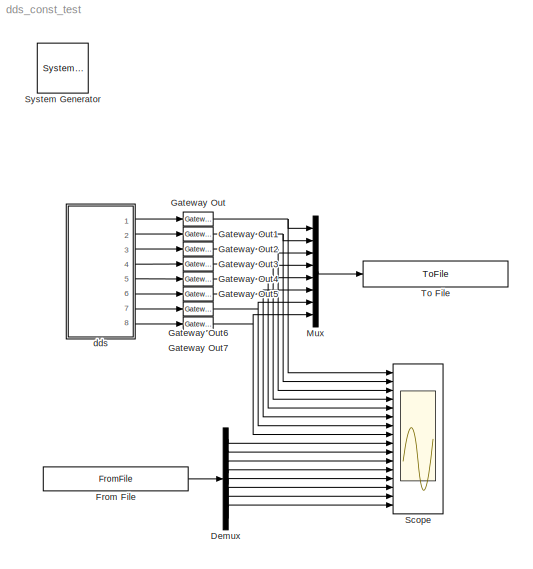
MODEL dds_const_test
KIND model
BLOCK [Reference]  System Generator  REF=xbsIndex_r4/ System Generator
  AttributesFormatString = System\\nGenerator
  FunctionWithSeparateData = off
  Ports = []
  RTWMemSecDataConstants = Inherit from model
  RTWMemSecDataInternal = Inherit from model
  RTWMemSecDataParameters = Inherit from model
  RTWMemSecFuncExecute = Inherit from model
  RTWMemSecFuncInitTerm = Inherit from model
  ShowPortLabels = FromPortIcon
  SourceBlock = xbsIndex_r4/ System Generator
  SourceType = Xilinx System Generator Block
  SystemSampleTime = -1
  Tag = genX
  UserData = DataTag0
  UserDataPersistent = on
  block_type = sysgen
  block_version = 10.1.1
  clock_wrapper = Clock Enables
  core_generation = According to Block Masks
  dbl_ovrd = According to Block Masks
  dcm_input_clock_period = 100
  deprecated_control = off
  directory = ./netlist
  eval_field = 0
  has_advanced_control = 0
  incr_netlist = off
  infoedit = System Generator
  package = ff668
  part = xc4vsx35
  run_coregen = off
  sg_icon_stat = 51,50,-1,-1,red,beige,0,07734,right
  sg_mask_display = fprintf('','COMMENT: begin icon graphics');\npatch([0 51 51 0 ],[0 0 50 50 ],[0.93 0.92 0.86]);\npatch([12 4 16 4 12 25 29 33 47 36 25 17 29 17 25 36 47 33 29 25 12 ],[5 13 25 37 45 45 41 45 45 34 45 37 25 13 5 16 5 5 9 5 5 ],[0.6 0.2 0.25]);\nplot([0 51 51 0 0 ],[0 0 50 50 0 ]);\nfprintf('','COMMENT: end icon graphics');\nfprintf('','COMMENT: begin icon text');\nfprintf('','COMMENT: end icon text...<+5ch>
  sggui_pos = -1,-1,-1,-1
  simulink_period = 1
  speed = -10
  synthesis_tool = XST
  sysclk_period = 100
  testbench = off
  trim_vbits = Everywhere in SubSystem
  xilinxfamily = Virtex4
BLOCK [Demux] Demux
  DisplayOption = bar
  Outputs = 8
  Ports = [1, 8]
BLOCK [FromFile] From File
  FileName = dds_const_test_reference.mat
  SampleTime = 1
BLOCK [Reference] Gateway Out  REF=xbsIndex_r4/Gateway Out
  LOCs = {}
  Ports = [1, 1]
  SourceBlock = xbsIndex_r4/Gateway Out
  SourceType = Xilinx Gateway Out Block
  block_type = gatewayout
  block_version = 10.1.1
  has_advanced_control = 0
  hdl_port = on
  infoedit = Gateway out block.  Converts Xilinx fixed point inputs into ouputs of type Simulink integer, double, or fixed point.<P><P>Hardware notes:  In hardware these blocks become top level output ports or are discarded, depending on how they are configured.  <repeated x8 — deduplicated; at blocks: Gateway Out, Gateway Out1, Gateway Out2, Gateway Out3, Gateway Out4, Gateway Out5, Gateway Out6, Gateway Out7>
  locs_specified = off
  sg_icon_stat = 30,14,1,1,white,yellow,0,38220381,right
  sg_mask_display = fprintf('','COMMENT: begin icon graphics');\npatch([0 30 30 0 ],[0 0 14 14 ],[0.95 0.93 0.65]);\npatch([11 9 12 9 11 15 16 17 21 18 15 13 16 13 15 18 21 17 16 15 11 ],[2 4 7 10 12 12 11 12 12 9 12 10 7 4 2 5 2 2 3 2 2 ],[0.98 0.96 0.92]);\nplot([0 30 30 0 0 ],[0 0 14 14 0 ]);\nfprintf('','COMMENT: end icon graphics');\nfprintf('','COMMENT: begin icon text');\ncolor('black');port_label('input',1,' ...<+127ch>  <repeated x8 — deduplicated; at blocks: Gateway Out, Gateway Out1, Gateway Out2, Gateway Out3, Gateway Out4, Gateway Out5, Gateway Out6, Gateway Out7>
  sggui_pos = -1,-1,-1,-1
  timing_constraint = None
  xl_area = [0,0,0,0,0,0,0]
  xl_use_area = off
BLOCK [Reference] Gateway Out1  REF=xbsIndex_r4/Gateway Out
  LOCs = {}
  Ports = [1, 1]
  SourceBlock = xbsIndex_r4/Gateway Out
  SourceType = Xilinx Gateway Out Block
  block_type = gatewayout
  block_version = 10.1.1
  has_advanced_control = 0
  hdl_port = on
  locs_specified = off
  sg_icon_stat = 30,14,1,1,white,yellow,0,38220381,right
  sggui_pos = -1,-1,-1,-1
  timing_constraint = None
  xl_area = [0,0,0,0,0,0,0]
  xl_use_area = off
BLOCK [Reference] Gateway Out2  REF=xbsIndex_r4/Gateway Out
  LOCs = {}
  Ports = [1, 1]
  SourceBlock = xbsIndex_r4/Gateway Out
  SourceType = Xilinx Gateway Out Block
  block_type = gatewayout
  block_version = 10.1.1
  has_advanced_control = 0
  hdl_port = on
  locs_specified = off
  sg_icon_stat = 30,14,1,1,white,yellow,0,38220381,right
  sggui_pos = -1,-1,-1,-1
  timing_constraint = None
  xl_area = [0,0,0,0,0,0,0]
  xl_use_area = off
BLOCK [Reference] Gateway Out3  REF=xbsIndex_r4/Gateway Out
  LOCs = {}
  Ports = [1, 1]
  SourceBlock = xbsIndex_r4/Gateway Out
  SourceType = Xilinx Gateway Out Block
  block_type = gatewayout
  block_version = 10.1.1
  has_advanced_control = 0
  hdl_port = on
  locs_specified = off
  sg_icon_stat = 30,14,1,1,white,yellow,0,38220381,right
  sggui_pos = -1,-1,-1,-1
  timing_constraint = None
  xl_area = [0,0,0,0,0,0,0]
  xl_use_area = off
BLOCK [Reference] Gateway Out4  REF=xbsIndex_r4/Gateway Out
  LOCs = {}
  Ports = [1, 1]
  SourceBlock = xbsIndex_r4/Gateway Out
  SourceType = Xilinx Gateway Out Block
  block_type = gatewayout
  block_version = 10.1.1
  has_advanced_control = 0
  hdl_port = on
  locs_specified = off
  sg_icon_stat = 30,14,1,1,white,yellow,0,38220381,right
  sggui_pos = -1,-1,-1,-1
  timing_constraint = None
  xl_area = [0,0,0,0,0,0,0]
  xl_use_area = off
BLOCK [Reference] Gateway Out5  REF=xbsIndex_r4/Gateway Out
  LOCs = {}
  Ports = [1, 1]
  SourceBlock = xbsIndex_r4/Gateway Out
  SourceType = Xilinx Gateway Out Block
  block_type = gatewayout
  block_version = 10.1.1
  has_advanced_control = 0
  hdl_port = on
  locs_specified = off
  sg_icon_stat = 30,14,1,1,white,yellow,0,38220381,right
  sggui_pos = -1,-1,-1,-1
  timing_constraint = None
  xl_area = [0,0,0,0,0,0,0]
  xl_use_area = off
BLOCK [Reference] Gateway Out6  REF=xbsIndex_r4/Gateway Out
  LOCs = {}
  Ports = [1, 1]
  SourceBlock = xbsIndex_r4/Gateway Out
  SourceType = Xilinx Gateway Out Block
  block_type = gatewayout
  block_version = 10.1.1
  has_advanced_control = 0
  hdl_port = on
  locs_specified = off
  sg_icon_stat = 30,14,1,1,white,yellow,0,38220381,right
  sggui_pos = -1,-1,-1,-1
  timing_constraint = None
  xl_area = [0,0,0,0,0,0,0]
  xl_use_area = off
BLOCK [Reference] Gateway Out7  REF=xbsIndex_r4/Gateway Out
  LOCs = {}
  Ports = [1, 1]
  SourceBlock = xbsIndex_r4/Gateway Out
  SourceType = Xilinx Gateway Out Block
  block_type = gatewayout
  block_version = 10.1.1
  has_advanced_control = 0
  hdl_port = on
  locs_specified = off
  sg_icon_stat = 30,14,1,1,white,yellow,0,38220381,right
  sggui_pos = -1,-1,-1,-1
  timing_constraint = None
  xl_area = [0,0,0,0,0,0,0]
  xl_use_area = off
BLOCK [Mux] Mux
  DisplayOption = bar
  Inputs = 8
  Ports = [8, 1]
BLOCK [Scope] Scope
  DataFormat = StructureWithTime
  Floating = off
  NumInputPorts = 16
  Ports = [16]
  SampleTime = 0
  YMax = 5~5~5~5~5~5~5~5~5~5~5~5~5~5~5~5
  YMin = -5~-5~-5~-5~-5~-5~-5~-5~-5~-5~-5~-5~-5~-5~-5~-5
  ZoomMode = xonly
BLOCK [ToFile] To File
  Filename = dds_const_test_output.mat
  MatrixName = output
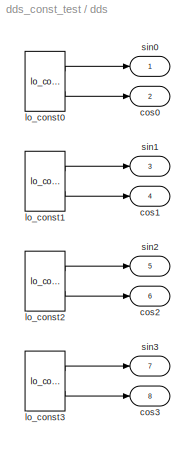
BLOCK [SubSystem] dds
  AncestorBlock = casper_library/Downconverter/dds
  AttributesFormatString = lo at -2/4
  FunctionWithSeparateData = off
  MaskCallbackString = ||||
  MaskDescription = Generates P channels of sin and cos data for mixing\nwith input data in a DDC. To generate frequency \nN/M(Fc x P) (where Fc is the clock rate) \nM = \"Frequency Divisions\", N = \"Frequency\",\nParallel LOs = P
  MaskEnableString = on,on,on,on,on
  MaskHelp = eval('xlWeb([getenv(''MLIB_ROOT''), ''<path>''])')
  MaskIconFrame = on
  MaskIconOpaque = on
  MaskIconRotate = none
  MaskIconUnits = autoscale
  MaskInitialization = dds_init(gcb, ...\n    'freq_div', freq_div, ...\n    'freq', freq, ...\n    'num_lo', num_lo, ...\n    'n_bits', n_bits, ...\n    'latency', latency);
  MaskPromptString = Frequency divisions (M)|Frequency (? / M*2pi)|Parallel LOs|Bit Width|Latency
  MaskSelfModifiable = on
  MaskStyleString = edit,edit,edit,edit,edit
  MaskTabNameString = ,,,,
  MaskToolTipString = on,on,on,on,on
  MaskTunableValueString = on,on,on,on,on
  MaskType = dds
  MaskValueString = 4|2|4|10|1
  MaskVarAliasString = ,,,,
  MaskVariables = freq_div=@1;freq=@2;num_lo=@3;n_bits=@4;latency=@5;
  MaskVisibilityString = on,on,on,on,on
  MinAlgLoopOccurrences = off
  Ports = [0, 8]
  RTWSystemCode = Auto
  UserData = DataTag1
  UserDataPersistent = on
BLOCK [Outport] dds/cos0
  IconDisplay = Port number
  OutDataType = sfix(16)
  OutScaling = 2^0
  Port = 2
BLOCK [Outport] dds/cos1
  IconDisplay = Port number
  OutDataType = sfix(16)
  OutScaling = 2^0
  Port = 4
BLOCK [Outport] dds/cos2
  IconDisplay = Port number
  OutDataType = sfix(16)
  OutScaling = 2^0
  Port = 6
BLOCK [Outport] dds/cos3
  IconDisplay = Port number
  OutDataType = sfix(16)
  OutScaling = 2^0
  Port = 8
BLOCK [Reference] dds/lo_const0  REF=casper_library/Downconverter/lo_const  (lib defined in mdl_138b2fc3435f, mdl_4ed325b712b3, +2 more)
  FunctionWithSeparateData = off
  Ports = [0, 2]
  RTWMemSecDataConstants = Inherit from model
  RTWMemSecDataInternal = Inherit from model
  RTWMemSecDataParameters = Inherit from model
  RTWMemSecFuncExecute = Inherit from model
  RTWMemSecFuncInitTerm = Inherit from model
  ShowPortLabels = FromPortIcon
  SourceBlock = casper_library/Downconverter/lo_const
  SourceType = lo_const
  SystemSampleTime = -1
  n_bits = 10
  phase = 0
BLOCK [Reference] dds/lo_const1  REF=casper_library/Downconverter/lo_const  (lib defined in mdl_138b2fc3435f, mdl_4ed325b712b3, +2 more)
  FunctionWithSeparateData = off
  Ports = [0, 2]
  RTWMemSecDataConstants = Inherit from model
  RTWMemSecDataInternal = Inherit from model
  RTWMemSecDataParameters = Inherit from model
  RTWMemSecFuncExecute = Inherit from model
  RTWMemSecFuncInitTerm = Inherit from model
  ShowPortLabels = FromPortIcon
  SourceBlock = casper_library/Downconverter/lo_const
  SourceType = lo_const
  SystemSampleTime = -1
  n_bits = 10
  phase = 3.1416
BLOCK [Reference] dds/lo_const2  REF=casper_library/Downconverter/lo_const  (lib defined in mdl_138b2fc3435f, mdl_4ed325b712b3, +2 more)
  FunctionWithSeparateData = off
  Ports = [0, 2]
  RTWMemSecDataConstants = Inherit from model
  RTWMemSecDataInternal = Inherit from model
  RTWMemSecDataParameters = Inherit from model
  RTWMemSecFuncExecute = Inherit from model
  RTWMemSecFuncInitTerm = Inherit from model
  ShowPortLabels = FromPortIcon
  SourceBlock = casper_library/Downconverter/lo_const
  SourceType = lo_const
  SystemSampleTime = -1
  n_bits = 10
  phase = 6.2832
BLOCK [Reference] dds/lo_const3  REF=casper_library/Downconverter/lo_const  (lib defined in mdl_138b2fc3435f, mdl_4ed325b712b3, +2 more)
  FunctionWithSeparateData = off
  Ports = [0, 2]
  RTWMemSecDataConstants = Inherit from model
  RTWMemSecDataInternal = Inherit from model
  RTWMemSecDataParameters = Inherit from model
  RTWMemSecFuncExecute = Inherit from model
  RTWMemSecFuncInitTerm = Inherit from model
  ShowPortLabels = FromPortIcon
  SourceBlock = casper_library/Downconverter/lo_const
  SourceType = lo_const
  SystemSampleTime = -1
  n_bits = 10
  phase = 9.4248
BLOCK [Outport] dds/sin0
  IconDisplay = Port number
  OutDataType = sfix(16)
  OutScaling = 2^0
BLOCK [Outport] dds/sin1
  IconDisplay = Port number
  OutDataType = sfix(16)
  OutScaling = 2^0
  Port = 3
BLOCK [Outport] dds/sin2
  IconDisplay = Port number
  OutDataType = sfix(16)
  OutScaling = 2^0
  Port = 5
BLOCK [Outport] dds/sin3
  IconDisplay = Port number
  OutDataType = sfix(16)
  OutScaling = 2^0
  Port = 7
LINE Demux:1 -> Scope:9
LINE Demux:2 -> Scope:10
LINE Demux:3 -> Scope:11
LINE Demux:4 -> Scope:12
LINE Demux:5 -> Scope:13
LINE Demux:6 -> Scope:14
LINE Demux:7 -> Scope:15
LINE Demux:8 -> Scope:16
LINE From File:1 -> Demux:1
NET Gateway Out1:1 -> Mux:2, Scope:2
NET Gateway Out2:1 -> Mux:3, Scope:3
NET Gateway Out3:1 -> Mux:4, Scope:4
NET Gateway Out4:1 -> Mux:5, Scope:5
NET Gateway Out5:1 -> Mux:6, Scope:6
NET Gateway Out6:1 -> Mux:7, Scope:7
NET Gateway Out7:1 -> Mux:8, Scope:8
NET Gateway Out:1 -> Mux:1, Scope:1
LINE Mux:1 -> To File:1
LINE dds/lo_const0:1 -> dds/sin0:1
LINE dds/lo_const0:2 -> dds/cos0:1
LINE dds/lo_const1:1 -> dds/sin1:1
LINE dds/lo_const1:2 -> dds/cos1:1
LINE dds/lo_const2:1 -> dds/sin2:1
LINE dds/lo_const2:2 -> dds/cos2:1
LINE dds/lo_const3:1 -> dds/sin3:1
LINE dds/lo_const3:2 -> dds/cos3:1
LINE dds:1 -> Gateway Out:1
LINE dds:2 -> Gateway Out1:1
LINE dds:3 -> Gateway Out2:1
LINE dds:4 -> Gateway Out3:1
LINE dds:5 -> Gateway Out4:1
LINE dds:6 -> Gateway Out5:1
LINE dds:7 -> Gateway Out6:1
LINE dds:8 -> Gateway Out7:1
note: NET lines group one-source signal fan-out (src -> all destinations, sorted); 1:1 wires keep LINE
note: 1 file-system path scrubbed to <path> (not preserved elsewhere — flat text is the only slx artifact)
